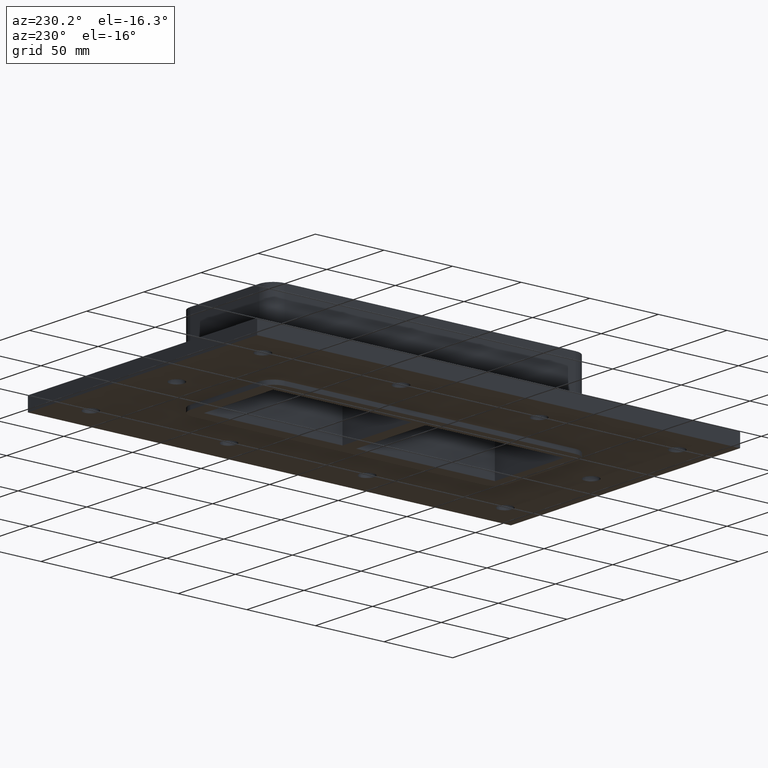
[diagram: clean part render]
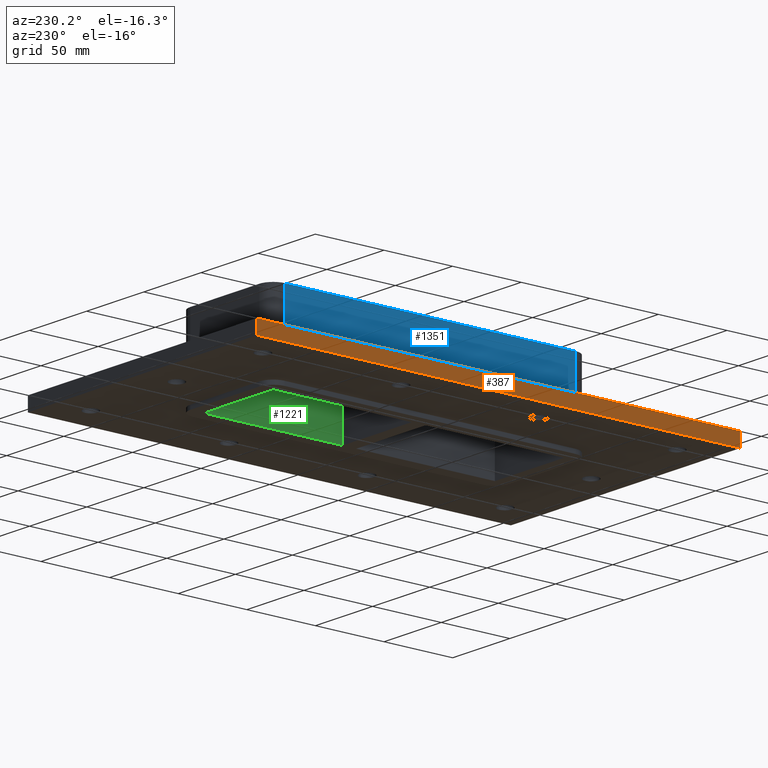
[diagram: same view with three faces highlighted in distinct colors, each labeled with its STEP entity id]
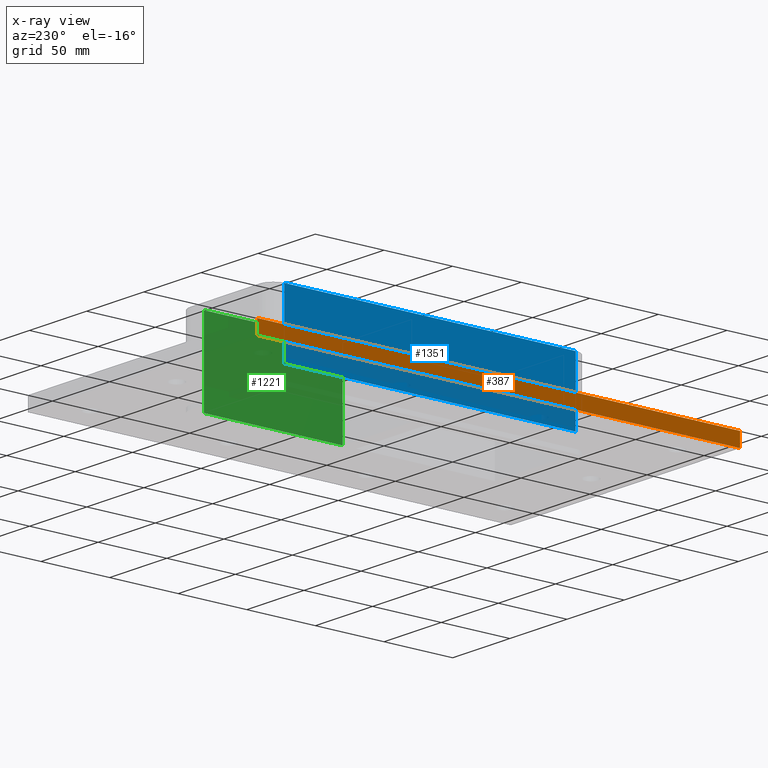
[diagram: x-ray of the same camera — body ghosted, the three highlighted faces saturated]
A machine part, auxiliary view with three faces highlighted in distinct colors.
The next image is the same camera in x-ray (body ghosted, the three faces saturated) — at least one of them is partly hidden behind the body in this view.
Their STEP definitions:

[orange] entity #387 — the highlighted planar face has unit normal (-1, 0, 0).
#348=CARTESIAN_POINT('',(-100.25000000000004,176.0,-27.0));
#349=DIRECTION('',(-1.0,0.0,0.0));
#350=DIRECTION('',(0.0,-1.0,0.0));
#351=AXIS2_PLACEMENT_3D('',#348,#349,#350);
#352=PLANE('',#351);
#353=CARTESIAN_POINT('',(-100.24999999999997,-176.0,-27.0));
#354=VERTEX_POINT('',#353);
#355=CARTESIAN_POINT('',(-100.25000000000004,175.99999999999997,-27.0));
#356=VERTEX_POINT('',#355);
#357=CARTESIAN_POINT('',(-100.24999999999997,-176.0,-27.0));
#358=DIRECTION('',(0.0,1.0,0.0));
#359=VECTOR('',#358,352.0);
#360=LINE('',#357,#359);
#361=EDGE_CURVE('',#354,#356,#360,.T.);
#362=ORIENTED_EDGE('',*,*,#361,.F.);
#363=CARTESIAN_POINT('',(-100.24999999999994,-176.0,-17.0));
#364=VERTEX_POINT('',#363);
#365=CARTESIAN_POINT('',(-100.24999999999997,-176.0,-27.0));
#366=DIRECTION('',(0.0,0.0,1.0));
#367=VECTOR('',#366,10.0);
#368=LINE('',#365,#367);
#369=EDGE_CURVE('',#354,#364,#368,.T.);
#370=ORIENTED_EDGE('',*,*,#369,.T.);
#371=CARTESIAN_POINT('',(-100.25000000000003,176.0,-17.0));
#372=VERTEX_POINT('',#371);
#373=CARTESIAN_POINT('',(-100.25000000000004,176.0,-17.0));
#374=DIRECTION('',(0.0,-1.0,0.0));
#375=VECTOR('',#374,352.0);
#376=LINE('',#373,#375);
#377=EDGE_CURVE('',#372,#364,#376,.T.);
#378=ORIENTED_EDGE('',*,*,#377,.F.);
#379=CARTESIAN_POINT('',(-100.25000000000004,175.99999999999997,-27.0));
#380=DIRECTION('',(0.0,0.0,1.0));
#381=VECTOR('',#380,10.0);
#382=LINE('',#379,#381);
#383=EDGE_CURVE('',#356,#372,#382,.T.);
#384=ORIENTED_EDGE('',*,*,#383,.F.);
#385=EDGE_LOOP('',(#362,#370,#378,#384));
#386=FACE_OUTER_BOUND('',#385,.T.);
#387=ADVANCED_FACE('',(#386),#352,.T.);

[blue] entity #1351 — the highlighted planar face has unit normal (-1, 0, 0).
#549=CARTESIAN_POINT('',(-40.25,-106.00000000000001,-17.0));
#550=VERTEX_POINT('',#549);
#558=CARTESIAN_POINT('',(-40.250000000000021,106.00000000000001,-17.0));
#559=VERTEX_POINT('',#558);
#560=CARTESIAN_POINT('',(-40.250000000000057,106.00000000000001,-17.0));
#561=DIRECTION('',(0.0,-1.0,0.0));
#562=VECTOR('',#561,212.00000000000006);
#563=LINE('',#560,#562);
#564=EDGE_CURVE('',#559,#550,#563,.T.);
#1066=CARTESIAN_POINT('',(-40.249999999999986,-105.99999999999996,30.0));
#1067=VERTEX_POINT('',#1066);
#1075=CARTESIAN_POINT('',(-40.249999999999986,-105.99999999999994,30.0));
#1076=DIRECTION('',(0.0,0.0,-1.0));
#1077=VECTOR('',#1076,47.0);
#1078=LINE('',#1075,#1077);
#1079=EDGE_CURVE('',#1067,#550,#1078,.T.);
#1090=CARTESIAN_POINT('',(-40.250000000000057,106.00000000000007,30.0));
#1091=VERTEX_POINT('',#1090);
#1092=CARTESIAN_POINT('',(-40.250000000000057,106.00000000000007,-17.0));
#1093=DIRECTION('',(0.0,0.0,1.0));
#1094=VECTOR('',#1093,47.0);
#1095=LINE('',#1092,#1094);
#1096=EDGE_CURVE('',#559,#1091,#1095,.T.);
#1335=CARTESIAN_POINT('',(-40.250000000000057,116.00000000000007,0.0));
#1336=DIRECTION('',(-1.0,0.0,0.0));
#1337=DIRECTION('',(0.0,-1.0,0.0));
#1338=AXIS2_PLACEMENT_3D('',#1335,#1336,#1337);
#1339=PLANE('',#1338);
#1340=ORIENTED_EDGE('',*,*,#564,.T.);
#1341=ORIENTED_EDGE('',*,*,#1079,.F.);
#1342=CARTESIAN_POINT('',(-40.250000000000057,106.00000000000007,30.0));
#1343=DIRECTION('',(0.0,-1.0,0.0));
#1344=VECTOR('',#1343,212.00000000000003);
#1345=LINE('',#1342,#1344);
#1346=EDGE_CURVE('',#1091,#1067,#1345,.T.);
#1347=ORIENTED_EDGE('',*,*,#1346,.F.);
#1348=ORIENTED_EDGE('',*,*,#1096,.F.);
#1349=EDGE_LOOP('',(#1340,#1341,#1347,#1348));
#1350=FACE_OUTER_BOUND('',#1349,.T.);
#1351=ADVANCED_FACE('',(#1350),#1339,.T.);

[green] entity #1221 — the highlighted planar face has unit normal (1, 0, 0).
#976=CARTESIAN_POINT('',(30.249999999999979,5.000000000000071,-30.0));
#977=VERTEX_POINT('',#976);
#984=CARTESIAN_POINT('',(30.249999999999964,106.00000000000009,-30.0));
#985=VERTEX_POINT('',#984);
#986=CARTESIAN_POINT('',(30.249999999999975,5.000000000000071,-30.0));
#987=DIRECTION('',(0.0,1.0,0.0));
#988=VECTOR('',#987,101.00000000000001);
#989=LINE('',#986,#988);
#990=EDGE_CURVE('',#977,#985,#989,.T.);
#1181=CARTESIAN_POINT('',(30.249999999999979,5.000000000000071,30.0));
#1182=VERTEX_POINT('',#1181);
#1189=CARTESIAN_POINT('',(30.249999999999979,5.000000000000071,30.0));
#1190=DIRECTION('',(0.0,0.0,-1.0));
#1191=VECTOR('',#1190,60.0);
#1192=LINE('',#1189,#1191);
#1193=EDGE_CURVE('',#1182,#977,#1192,.T.);
#1198=CARTESIAN_POINT('',(30.249999999999964,106.00000000000009,30.0));
#1199=DIRECTION('',(1.0,0.0,0.0));
#1200=DIRECTION('',(0.0,-1.0,0.0));
#1201=AXIS2_PLACEMENT_3D('',#1198,#1199,#1200);
#1202=PLANE('',#1201);
#1203=ORIENTED_EDGE('',*,*,#990,.F.);
#1204=ORIENTED_EDGE('',*,*,#1193,.F.);
#1205=CARTESIAN_POINT('',(30.249999999999964,106.00000000000009,30.0));
#1206=VERTEX_POINT('',#1205);
#1207=CARTESIAN_POINT('',(30.249999999999961,106.00000000000009,30.0));
#1208=DIRECTION('',(0.0,-1.0,0.0));
#1209=VECTOR('',#1208,101.00000000000001);
#1210=LINE('',#1207,#1209);
#1211=EDGE_CURVE('',#1206,#1182,#1210,.T.);
#1212=ORIENTED_EDGE('',*,*,#1211,.F.);
#1213=CARTESIAN_POINT('',(30.249999999999964,106.00000000000009,30.0));
#1214=DIRECTION('',(0.0,0.0,-1.0));
#1215=VECTOR('',#1214,60.0);
#1216=LINE('',#1213,#1215);
#1217=EDGE_CURVE('',#1206,#985,#1216,.T.);
#1218=ORIENTED_EDGE('',*,*,#1217,.T.);
#1219=EDGE_LOOP('',(#1203,#1204,#1212,#1218));
#1220=FACE_OUTER_BOUND('',#1219,.T.);
#1221=ADVANCED_FACE('',(#1220),#1202,.F.);